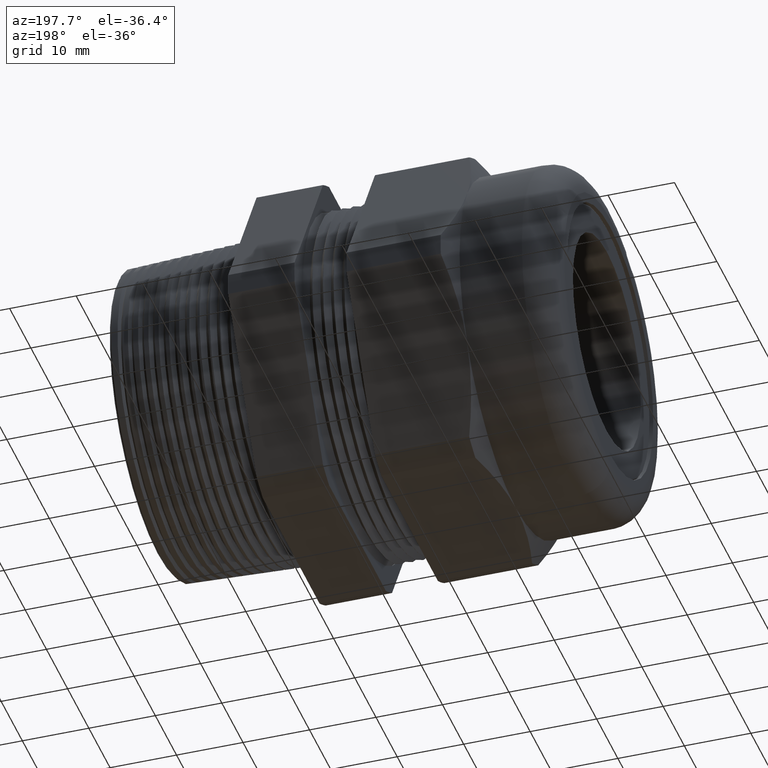
[diagram: clean part render]
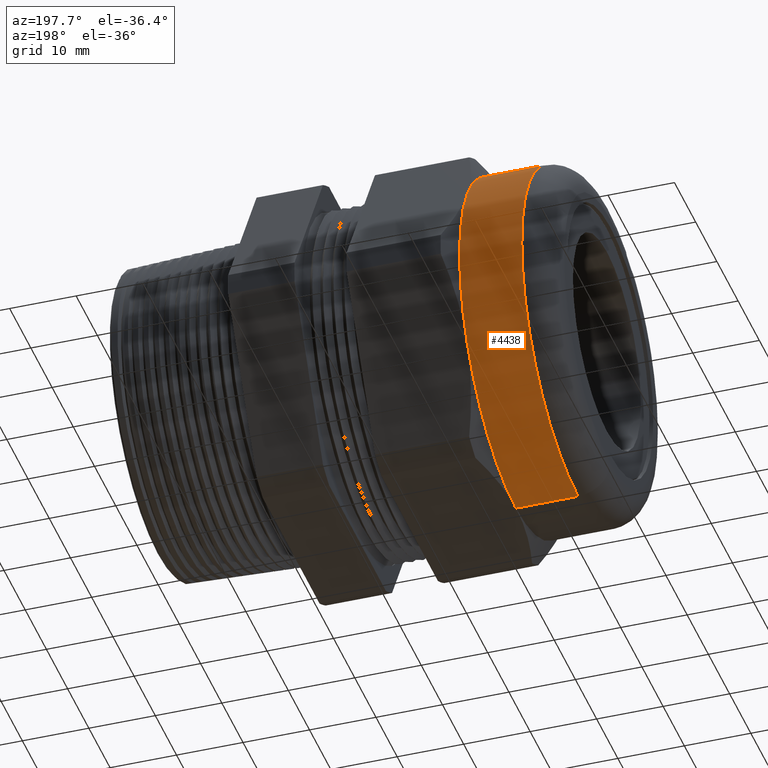
[diagram: same view with one face highlighted and labeled with its STEP entity id]
A machine part, auxiliary view. The second image highlights one B-rep face of the part: STEP entity #4438.
In plain terms, the highlighted cylindrical surface (partial cylindrical patch) has radius 26.543 mm, axis along (-1, 0, 0).
Its self-contained STEP definition (entity closure, byte-faithful):
#416 = EDGE_CURVE ( 'NONE', #418, #434, #1923, .T. ) ;
#418 = VERTEX_POINT ( 'NONE', #1918 ) ;
#434 = VERTEX_POINT ( 'NONE', #1952 ) ;
#1079 = ORIENTED_EDGE ( 'NONE', *, *, #1081, .T. ) ;
#1081 = EDGE_CURVE ( 'NONE', #4403, #4426, #3187, .T. ) ;
#1918 = CARTESIAN_POINT ( 'NONE',  ( -1.699599999999999600, 1.279755905108984100E-016, -1.044999999999999900 ) ) ;
#1919 = DIRECTION ( 'NONE',  ( 0.0000000000000000000, 0.0000000000000000000, -1.000000000000000000 ) ) ;
#1920 = DIRECTION ( 'NONE',  ( 1.000000000000000000, 0.0000000000000000000, 0.0000000000000000000 ) ) ;
#1921 = CARTESIAN_POINT ( 'NONE',  ( -1.699599999999999600, 0.0000000000000000000, 0.0000000000000000000 ) ) ;
#1922 = AXIS2_PLACEMENT_3D ( 'NONE', #1921, #1920, #1919 ) ;
#1923 = CIRCLE ( 'NONE', #1922, 1.044999999999999900 ) ;
#1952 = CARTESIAN_POINT ( 'NONE',  ( -1.699599999999999600, 0.0000000000000000000, 1.044999999999999900 ) ) ;
#3179 = DIRECTION ( 'NONE',  ( 0.0000000000000000000, 0.0000000000000000000, 1.000000000000000000 ) ) ;
#3180 = DIRECTION ( 'NONE',  ( -1.000000000000000000, 0.0000000000000000000, 0.0000000000000000000 ) ) ;
#3181 = CARTESIAN_POINT ( 'NONE',  ( -1.331250000000000300, 0.0000000000000000000, 0.0000000000000000000 ) ) ;
#3182 = AXIS2_PLACEMENT_3D ( 'NONE', #3181, #3180, #3179 ) ;
#3187 = CIRCLE ( 'NONE', #3182, 1.044999999999999900 ) ;
#3813 = CARTESIAN_POINT ( 'NONE',  ( -1.331250000000000300, 0.0000000000000000000, 1.045000000000000400 ) ) ;
#3878 = CARTESIAN_POINT ( 'NONE',  ( -1.331250000000000300, 0.0000000000000000000, -1.045000000000000400 ) ) ;
#3883 = CARTESIAN_POINT ( 'NONE',  ( -1.331250000000000300, 0.9049965469547387500, -0.5225000000000000800 ) ) ;
#3901 = DIRECTION ( 'NONE',  ( 0.0000000000000000000, 0.0000000000000000000, 1.000000000000000000 ) ) ;
#3902 = DIRECTION ( 'NONE',  ( -1.000000000000000000, 0.0000000000000000000, 0.0000000000000000000 ) ) ;
#3903 = CARTESIAN_POINT ( 'NONE',  ( -1.331250000000000300, 0.0000000000000000000, 0.0000000000000000000 ) ) ;
#3904 = AXIS2_PLACEMENT_3D ( 'NONE', #3903, #3902, #3901 ) ;
#3905 = CIRCLE ( 'NONE', #3904, 1.044999999999999900 ) ;
#3910 = CARTESIAN_POINT ( 'NONE',  ( -1.331250000000000300, 0.9049965469547385200, 0.5225000000000005200 ) ) ;
#3917 = DIRECTION ( 'NONE',  ( 0.0000000000000000000, 0.0000000000000000000, 1.000000000000000000 ) ) ;
#3918 = DIRECTION ( 'NONE',  ( -1.000000000000000000, 0.0000000000000000000, 0.0000000000000000000 ) ) ;
#3919 = CARTESIAN_POINT ( 'NONE',  ( -0.7238591030180623300, 0.0000000000000000000, 0.0000000000000000000 ) ) ;
#3920 = AXIS2_PLACEMENT_3D ( 'NONE', #3919, #3918, #3917 ) ;
#3922 = CYLINDRICAL_SURFACE ( 'NONE', #3920, 1.044999999999999900 ) ;
#3923 = FACE_OUTER_BOUND ( 'NONE', #4439, .T. ) ;
#3924 = DIRECTION ( 'NONE',  ( 0.0000000000000000000, 0.0000000000000000000, 1.000000000000000000 ) ) ;
#3925 = DIRECTION ( 'NONE',  ( -1.000000000000000000, 0.0000000000000000000, 0.0000000000000000000 ) ) ;
#3926 = CARTESIAN_POINT ( 'NONE',  ( -1.331250000000000300, 0.0000000000000000000, 0.0000000000000000000 ) ) ;
#3927 = AXIS2_PLACEMENT_3D ( 'NONE', #3926, #3925, #3924 ) ;
#3928 = CIRCLE ( 'NONE', #3927, 1.044999999999999900 ) ;
#3929 = DIRECTION ( 'NONE',  ( -1.000000000000000000, 0.0000000000000000000, 0.0000000000000000000 ) ) ;
#3930 = VECTOR ( 'NONE', #3929, 39.37007874015748100 ) ;
#3931 = CARTESIAN_POINT ( 'NONE',  ( -0.7238591030180623300, 1.279755905108984100E-016, -1.044999999999999900 ) ) ;
#3932 = LINE ( 'NONE', #3931, #3930 ) ;
#3933 = DIRECTION ( 'NONE',  ( -1.000000000000000000, 0.0000000000000000000, 0.0000000000000000000 ) ) ;
#3934 = VECTOR ( 'NONE', #3933, 39.37007874015748100 ) ;
#3935 = CARTESIAN_POINT ( 'NONE',  ( -0.7238591030180623300, 0.0000000000000000000, 1.044999999999999900 ) ) ;
#3940 = LINE ( 'NONE', #3935, #3934 ) ;
#4375 = ORIENTED_EDGE ( 'NONE', *, *, #4409, .T. ) ;
#4378 = VERTEX_POINT ( 'NONE', #3813 ) ;
#4382 = ORIENTED_EDGE ( 'NONE', *, *, #4430, .F. ) ;
#4385 = ORIENTED_EDGE ( 'NONE', *, *, #416, .T. ) ;
#4403 = VERTEX_POINT ( 'NONE', #3910 ) ;
#4409 = EDGE_CURVE ( 'NONE', #4378, #4403, #3905, .T. ) ;
#4426 = VERTEX_POINT ( 'NONE', #3883 ) ;
#4427 = VERTEX_POINT ( 'NONE', #3878 ) ;
#4430 = EDGE_CURVE ( 'NONE', #4378, #434, #3940, .T. ) ;
#4431 = ORIENTED_EDGE ( 'NONE', *, *, #4433, .T. ) ;
#4433 = EDGE_CURVE ( 'NONE', #4427, #418, #3932, .T. ) ;
#4436 = EDGE_CURVE ( 'NONE', #4426, #4427, #3928, .T. ) ;
#4437 = ORIENTED_EDGE ( 'NONE', *, *, #4436, .T. ) ;
#4438 = ADVANCED_FACE ( 'NONE', ( #3923 ), #3922, .T. ) ;
#4439 = EDGE_LOOP ( 'NONE', ( #4437, #4431, #4385, #4382, #4375, #1079 ) ) ;